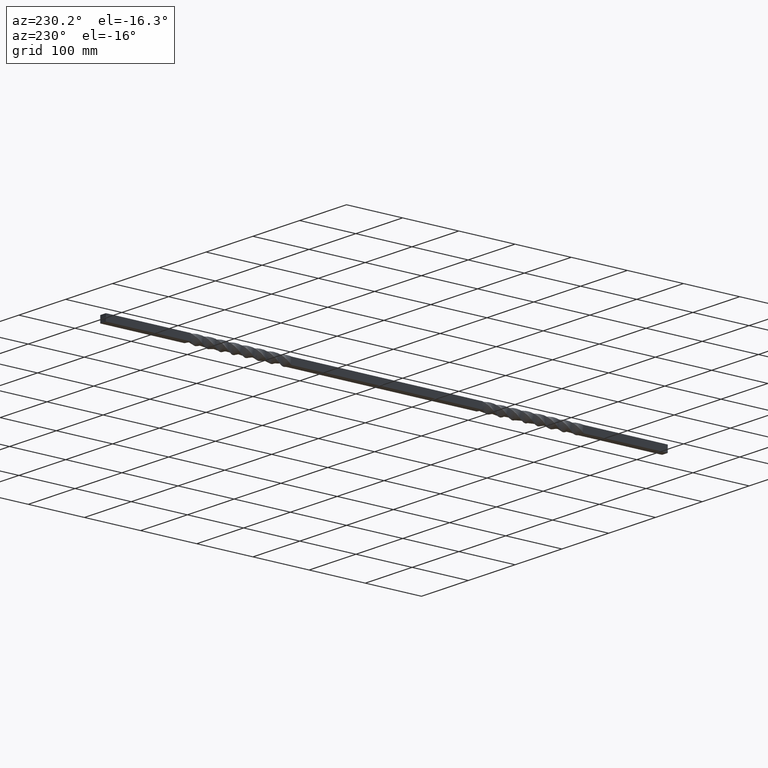
[diagram: clean part render]
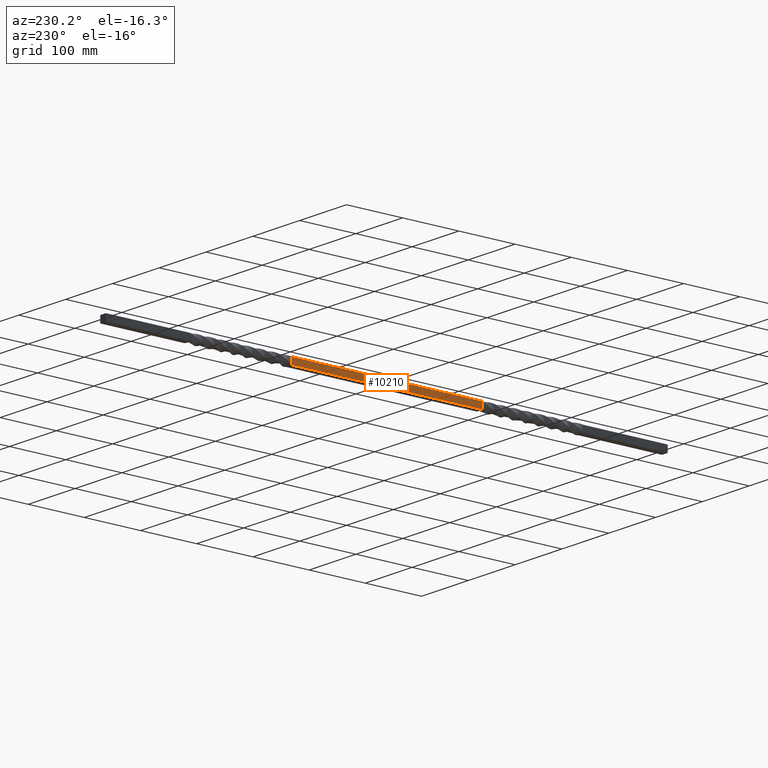
[diagram: same view with one face highlighted and labeled with its STEP entity id]
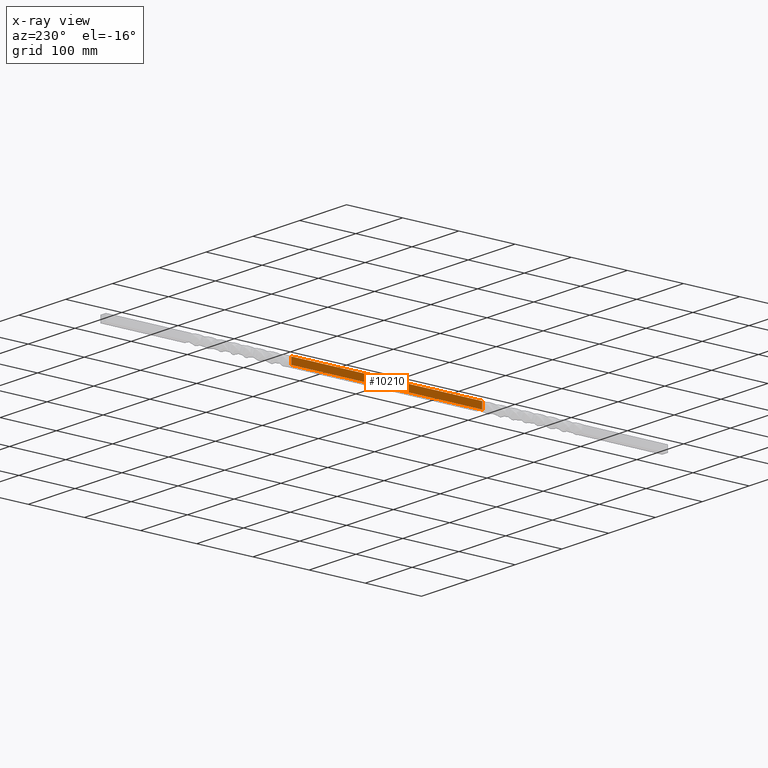
[diagram: x-ray of the same camera — body ghosted, the highlighted face saturated]
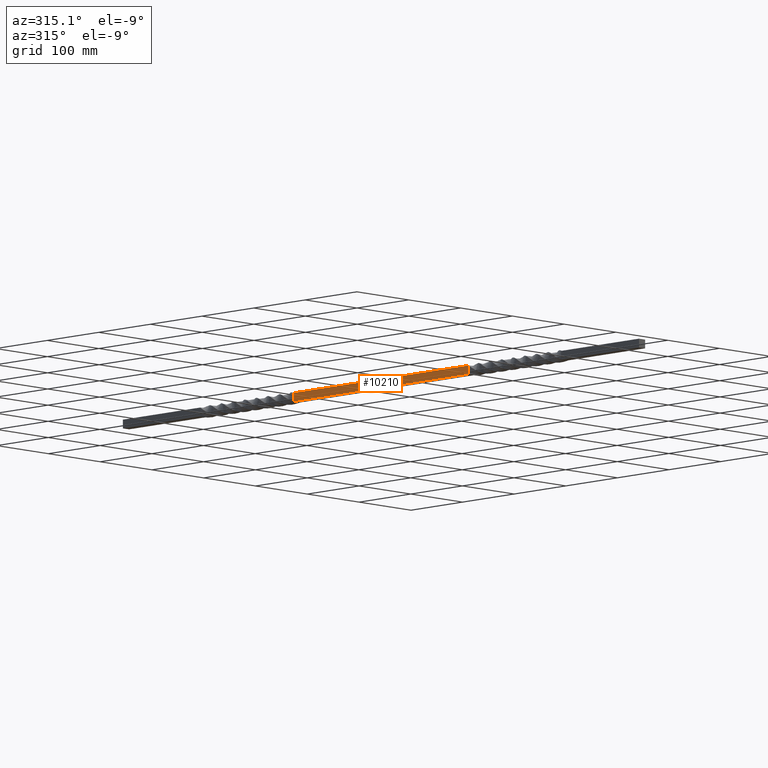
[diagram: same view with one face highlighted and labeled with its STEP entity id]
A machine part, auxiliary view. The second image highlights one B-rep face of the part: STEP entity #10210.
The next image is the same camera in x-ray: the body ghosted, the highlighted face saturated — about 0% of this face is hidden behind the body in this view.
A second angle (auxiliary view) of the same face is appended — the face is thin or edge-on in the first view.
In plain terms, the highlighted planar face has unit normal (1, -0, 0).
Its self-contained STEP definition (entity closure, byte-faithful):
#236 = DIRECTION ( 'NONE',  ( 8.222365204856686049E-10, 0.000000000000000000, -1.000000000000000000 ) ) ;
#777 = CARTESIAN_POINT ( 'NONE',  ( -5.999999997126952422, 279.9999999863825337, -6.000000006995200863 ) ) ;
#1129 = DIRECTION ( 'NONE',  ( 0.000000000000000000, -0.000000000000000000, 1.000000000000000000 ) ) ;
#1407 = CARTESIAN_POINT ( 'NONE',  ( -6.000000006993791324, 619.9999999668445980, 5.999999997126825413 ) ) ;
#1597 = FACE_OUTER_BOUND ( 'NONE', #8444, .T. ) ;
#1704 = ORIENTED_EDGE ( 'NONE', *, *, #2522, .F. ) ;
#2522 = EDGE_CURVE ( 'NONE', #9895, #8999, #11129, .T. ) ;
#3213 = CARTESIAN_POINT ( 'NONE',  ( -5.999999997126952422, 800.0019999863817475, -6.000000006995200863 ) ) ;
#3646 = AXIS2_PLACEMENT_3D ( 'NONE', #6318, #6363, #236 ) ;
#3809 = EDGE_CURVE ( 'NONE', #8976, #8999, #9362, .T. ) ;
#3895 = DIRECTION ( 'NONE',  ( -0.000000000000000000, -1.000000000000000000, -0.000000000000000000 ) ) ;
#4294 = LINE ( 'NONE', #3213, #4447 ) ;
#4447 = VECTOR ( 'NONE', #9387, 1000.000000000000000 ) ;
#4933 = DIRECTION ( 'NONE',  ( -5.459465707728330722E-10, 1.831867991049714330E-11, 1.000000000000000000 ) ) ;
#5034 = CARTESIAN_POINT ( 'NONE',  ( -6.000000006993791324, 800.0019999863817475, 5.999999997126825413 ) ) ;
#5288 = VECTOR ( 'NONE', #1129, 1000.000000000000000 ) ;
#5406 = CARTESIAN_POINT ( 'NONE',  ( -6.000000006993791324, 279.9999999863817948, 5.999999997126825413 ) ) ;
#5609 = EDGE_CURVE ( 'NONE', #12962, #9895, #12414, .T. ) ;
#6113 = VECTOR ( 'NONE', #3895, 1000.000000000000000 ) ;
#6318 = CARTESIAN_POINT ( 'NONE',  ( -5.999999997126952422, 800.0019999863817475, -6.000000006995200863 ) ) ;
#6363 = DIRECTION ( 'NONE',  ( 1.000000000000000000, -0.000000000000000000, 8.222365204856686049E-10 ) ) ;
#6672 = CARTESIAN_POINT ( 'NONE',  ( -5.999999997126952422, 619.9999999611522981, -6.000000006995200863 ) ) ;
#7257 = CARTESIAN_POINT ( 'NONE',  ( -6.000000000000000888, 280.0000000000000000, 0.000000000000000000 ) ) ;
#8311 = ORIENTED_EDGE ( 'NONE', *, *, #5609, .F. ) ;
#8444 = EDGE_LOOP ( 'NONE', ( #8311, #9604, #10635, #1704 ) ) ;
#8844 = CARTESIAN_POINT ( 'NONE',  ( -5.999999998631529330, 619.9999999909529151, -3.276180975814169116E-09 ) ) ;
#8976 = VERTEX_POINT ( 'NONE', #777 ) ;
#8999 = VERTEX_POINT ( 'NONE', #5406 ) ;
#9362 = LINE ( 'NONE', #7257, #5288 ) ;
#9387 = DIRECTION ( 'NONE',  ( -0.000000000000000000, -1.000000000000000000, -0.000000000000000000 ) ) ;
#9604 = ORIENTED_EDGE ( 'NONE', *, *, #9784, .T. ) ;
#9784 = EDGE_CURVE ( 'NONE', #12962, #8976, #4294, .T. ) ;
#9895 = VERTEX_POINT ( 'NONE', #1407 ) ;
#10147 = VECTOR ( 'NONE', #4933, 1000.000000000000000 ) ;
#10210 = ADVANCED_FACE ( 'NONE', ( #1597 ), #12546, .F. ) ;
#10635 = ORIENTED_EDGE ( 'NONE', *, *, #3809, .T. ) ;
#11129 = LINE ( 'NONE', #5034, #6113 ) ;
#12414 = LINE ( 'NONE', #8844, #10147 ) ;
#12546 = PLANE ( 'NONE',  #3646 ) ;
#12962 = VERTEX_POINT ( 'NONE', #6672 ) ;